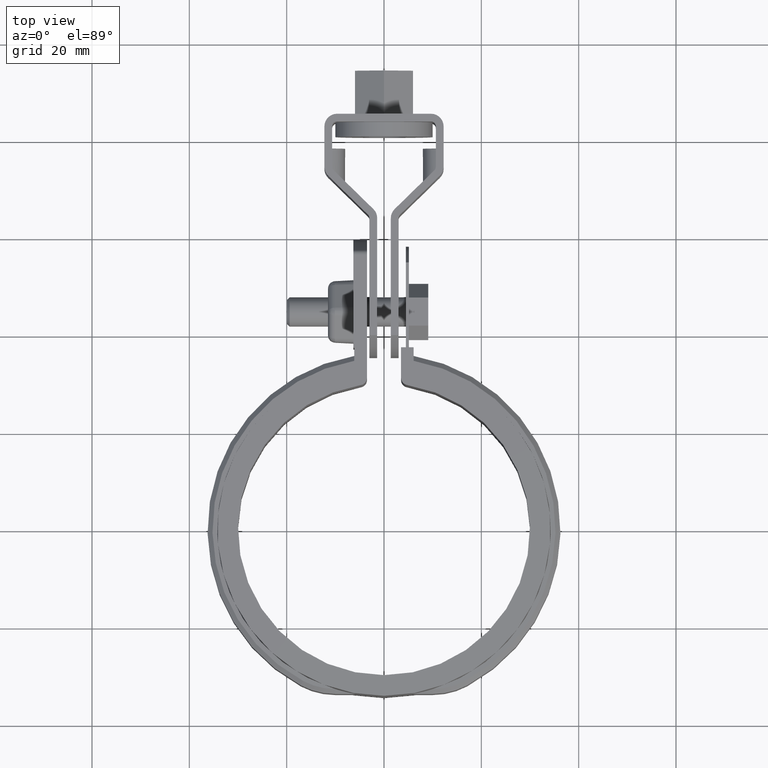
[diagram: clean part render]
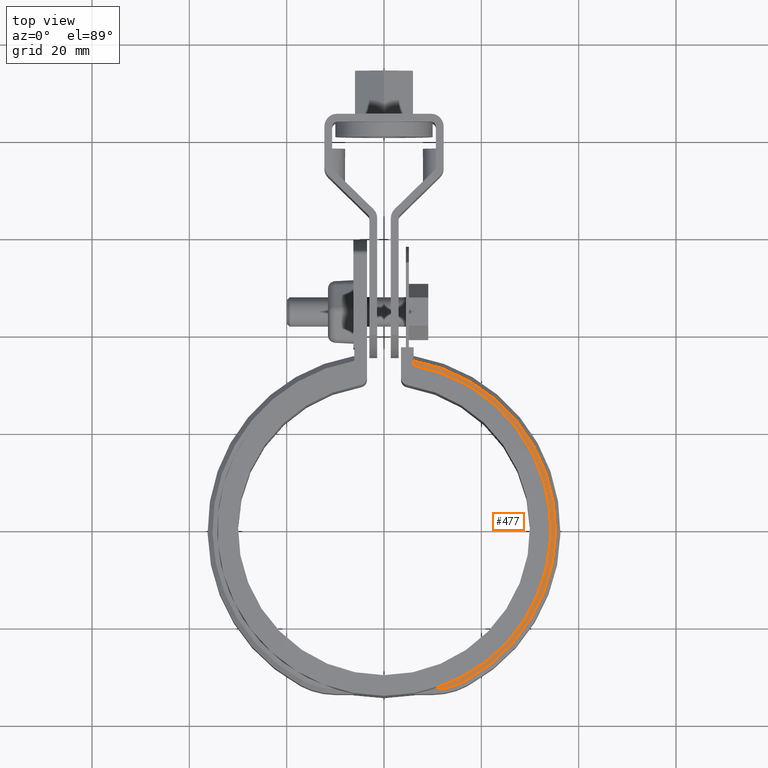
[diagram: same view with one face highlighted and labeled with its STEP entity id]
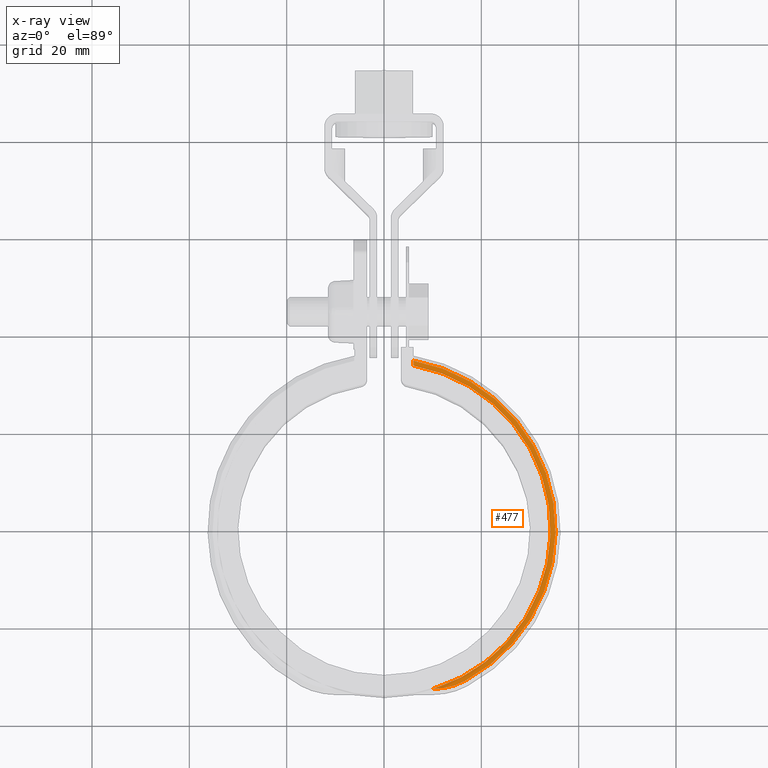
[diagram: x-ray of the same camera — body ghosted, the highlighted face saturated]
A machine part, top view. The second image highlights one B-rep face of the part: STEP entity #477.
The next image is the same camera in x-ray: the body ghosted, the highlighted face saturated — about 0% of this face is hidden behind the body in this view.
In plain terms, the highlighted planar face has unit normal (0, 0, 1).
Its self-contained STEP definition (entity closure, byte-faithful):
#477 = ADVANCED_FACE( '', ( #947 ), #948, .T. );
#947 = FACE_OUTER_BOUND( '', #2202, .T. );
#948 = PLANE( '', #2203 );
#2202 = EDGE_LOOP( '', ( #4875, #4876, #4877, #4878 ) );
#2203 = AXIS2_PLACEMENT_3D( '', #4879, #4880, #4881 );
#4875 = ORIENTED_EDGE( '', *, *, #6976, .F. );
#4876 = ORIENTED_EDGE( '', *, *, #7148, .T. );
#4877 = ORIENTED_EDGE( '', *, *, #7019, .T. );
#4878 = ORIENTED_EDGE( '', *, *, #7027, .F. );
#4879 = CARTESIAN_POINT( '', ( 8.67361737988404E-016, 0.000000000000000, -5.00000000000000 ) );
#4880 = DIRECTION( '', ( 0.000000000000000, 0.000000000000000, 1.00000000000000 ) );
#4881 = DIRECTION( '', ( 1.00000000000000, 0.000000000000000, 0.000000000000000 ) );
#6976 = EDGE_CURVE( '', #8029, #8031, #8032, .T. );
#7019 = EDGE_CURVE( '', #8112, #8109, #8113, .T. );
#7027 = EDGE_CURVE( '', #8031, #8109, #8126, .F. );
#7148 = EDGE_CURVE( '', #8029, #8112, #8317, .T. );
#8029 = VERTEX_POINT( '', #10608 );
#8031 = VERTEX_POINT( '', #10614 );
#8032 = CIRCLE( '', #10615, 34.2450000000000 );
#8109 = VERTEX_POINT( '', #10926 );
#8112 = VERTEX_POINT( '', #10932 );
#8113 = CIRCLE( '', #10933, 35.2450000000000 );
#8126 = LINE( '', #10990, #10991 );
#8317 = CIRCLE( '', #11792, 14.0000000000000 );
#10608 = CARTESIAN_POINT( '', ( 10.0537420905701, -32.7359480537268, -5.00000000000000 ) );
#10614 = CARTESIAN_POINT( '', ( 6.10000000000001, 33.6973296419761, -5.00000000000000 ) );
#10615 = AXIS2_PLACEMENT_3D( '', #13622, #13623, #13624 );
#10926 = CARTESIAN_POINT( '', ( 6.10000000000001, 34.7131102755141, -5.00000000000000 ) );
#10932 = CARTESIAN_POINT( '', ( 16.6156729905385, -31.0826227347611, -5.00000000000000 ) );
#10933 = AXIS2_PLACEMENT_3D( '', #13666, #13667, #13668 );
#10990 = CARTESIAN_POINT( '', ( 6.10000000000001, 33.6973296419761, -5.00000000000000 ) );
#10991 = VECTOR( '', #13677, 1000.00000000000 );
#11792 = AXIS2_PLACEMENT_3D( '', #13821, #13822, #13823 );
#13622 = CARTESIAN_POINT( '', ( 0.000000000000000, 0.000000000000000, -5.00000000000000 ) );
#13623 = DIRECTION( '', ( 0.000000000000000, 0.000000000000000, 1.00000000000000 ) );
#13624 = DIRECTION( '', ( 1.00000000000000, 0.000000000000000, 0.000000000000000 ) );
#13666 = CARTESIAN_POINT( '', ( 8.67361737988404E-016, 0.000000000000000, -5.00000000000000 ) );
#13667 = DIRECTION( '', ( 0.000000000000000, 0.000000000000000, 1.00000000000000 ) );
#13668 = DIRECTION( '', ( 1.00000000000000, 0.000000000000000, 0.000000000000000 ) );
#13677 = DIRECTION( '', ( -6.07153216591882E-017, -1.00000000000000, 0.000000000000000 ) );
#13821 = CARTESIAN_POINT( '', ( 10.0156042753296, -18.7360000000000, -5.00000000000000 ) );
#13822 = DIRECTION( '', ( 0.000000000000000, 0.000000000000000, 1.00000000000000 ) );
#13823 = DIRECTION( '', ( 1.00000000000000, 0.000000000000000, 0.000000000000000 ) );